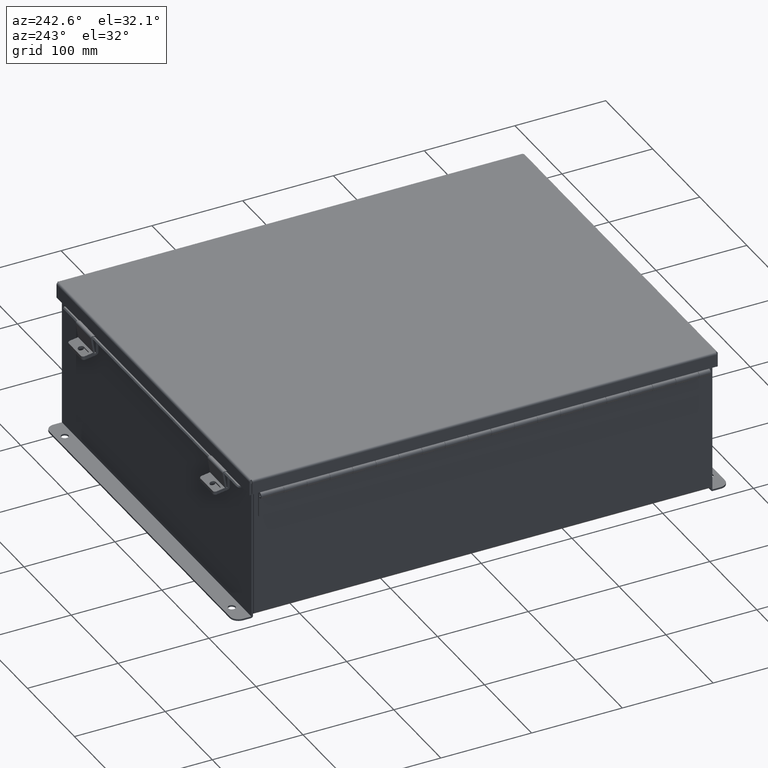
[diagram: clean part render]
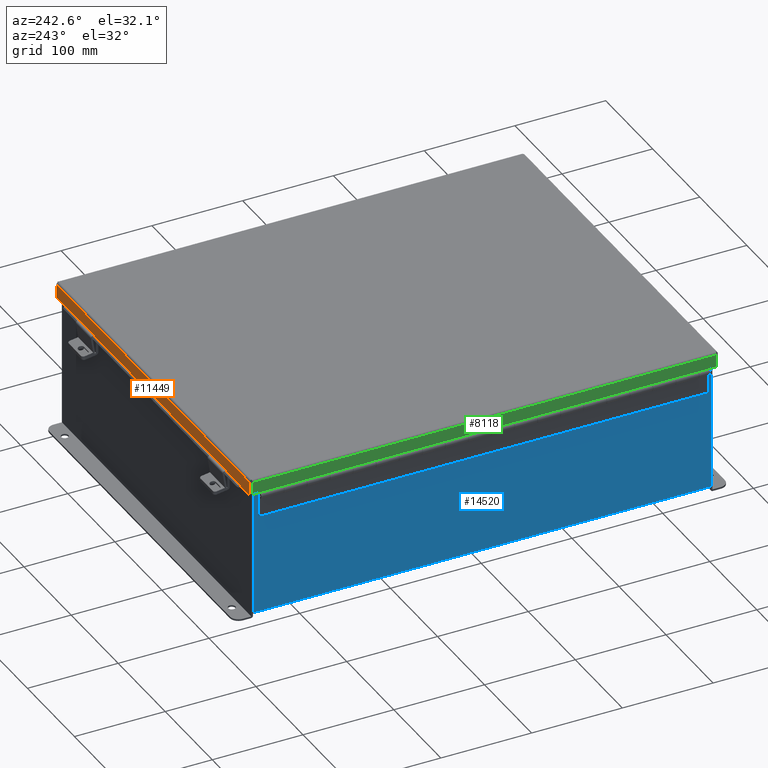
[diagram: same view with three faces highlighted in distinct colors, each labeled with its STEP entity id]
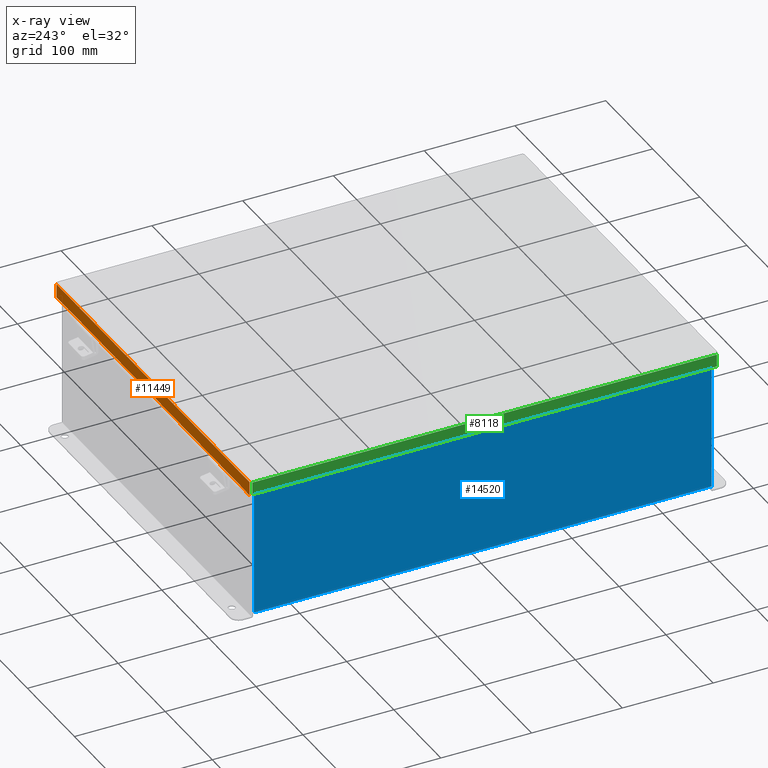
[diagram: x-ray of the same camera — body ghosted, the three highlighted faces saturated]
A machine part, auxiliary view with three faces highlighted in distinct colors.
The next image is the same camera in x-ray (body ghosted, the three faces saturated) — at least one of them is partly hidden behind the body in this view.
Their STEP definitions:

[orange] entity #11449 — the highlighted planar face has unit normal (-0, -1, -0).
#147 = DIRECTION ( 'NONE',  ( -0.0000000000000000000, 3.569293475308532400E-015, 1.000000000000000000 ) ) ;
#531 = EDGE_CURVE ( 'NONE', #21795, #21732, #14695, .T. ) ;
#1264 = EDGE_CURVE ( 'NONE', #14735, #17826, #18787, .T. ) ;
#1687 = VERTEX_POINT ( 'NONE', #17562 ) ;
#2322 = DIRECTION ( 'NONE',  ( 0.0000000000000000000, -3.569293475308532400E-015, -1.000000000000000000 ) ) ;
#2565 = VERTEX_POINT ( 'NONE', #11763 ) ;
#3286 = EDGE_CURVE ( 'NONE', #1687, #21795, #10081, .T. ) ;
#3295 = CARTESIAN_POINT ( 'NONE',  ( 5.335640612625514100E-018, 10.15624999999998400, 0.6122999999999994000 ) ) ;
#3350 = ORIENTED_EDGE ( 'NONE', *, *, #14502, .T. ) ;
#3395 = CARTESIAN_POINT ( 'NONE',  ( -8.074478932188169400, 10.15624999999998200, -3.715313271383398100E-014 ) ) ;
#4104 = VECTOR ( 'NONE', #4883, 39.37007874015748100 ) ;
#4327 = ORIENTED_EDGE ( 'NONE', *, *, #10358, .F. ) ;
#4646 = FACE_OUTER_BOUND ( 'NONE', #15736, .T. ) ;
#4883 = DIRECTION ( 'NONE',  ( 1.000000000000000000, 3.215430816478818200E-030, 4.186740220174584600E-018 ) ) ;
#5224 = DIRECTION ( 'NONE',  ( 1.000000000000000000, 3.191323508412550700E-030, -0.0000000000000000000 ) ) ;
#5456 = CARTESIAN_POINT ( 'NONE',  ( 7.324478932188148100, 10.15624999999998600, 0.5967115427318782100 ) ) ;
#5501 = VECTOR ( 'NONE', #16679, 39.37007874015748100 ) ;
#6855 = VERTEX_POINT ( 'NONE', #7710 ) ;
#7710 = CARTESIAN_POINT ( 'NONE',  ( 7.324478932188149800, 10.15624999999998400, 0.6122999999999994000 ) ) ;
#7719 = EDGE_CURVE ( 'NONE', #6855, #21732, #13321, .T. ) ;
#7753 = VECTOR ( 'NONE', #15588, 39.37007874015748100 ) ;
#7911 = LINE ( 'NONE', #8636, #16618 ) ;
#8636 = CARTESIAN_POINT ( 'NONE',  ( -7.324478932188140900, 10.15624999999998600, 0.5967115427318782100 ) ) ;
#9159 = CARTESIAN_POINT ( 'NONE',  ( 0.0000000000000000000, 10.15624999999998200, -3.715313271383398100E-014 ) ) ;
#9826 = ORIENTED_EDGE ( 'NONE', *, *, #18497, .F. ) ;
#10005 = ORIENTED_EDGE ( 'NONE', *, *, #7719, .T. ) ;
#10081 = LINE ( 'NONE', #10342, #14686 ) ;
#10342 = CARTESIAN_POINT ( 'NONE',  ( 8.156250000000033800, 10.15624999999998200, 0.01300000000000010700 ) ) ;
#10358 = EDGE_CURVE ( 'NONE', #14383, #17826, #7911, .T. ) ;
#10663 = DIRECTION ( 'NONE',  ( -1.000000000000000000, -3.191323508412551400E-030, -0.0000000000000000000 ) ) ;
#10813 = CARTESIAN_POINT ( 'NONE',  ( 5.335640612625514100E-018, 10.15624999999998400, 0.6122999999999994000 ) ) ;
#11449 = ADVANCED_FACE ( 'NONE', ( #4646 ), #19507, .F. ) ;
#11763 = CARTESIAN_POINT ( 'NONE',  ( 7.324478932188149800, 10.15624999999998400, 0.5967115427318782100 ) ) ;
#12212 = AXIS2_PLACEMENT_3D ( 'NONE', #9159, #12656, #2322 ) ;
#12520 = VECTOR ( 'NONE', #147, 39.37007874015748100 ) ;
#12547 = ORIENTED_EDGE ( 'NONE', *, *, #531, .F. ) ;
#12656 = DIRECTION ( 'NONE',  ( -3.372195227344556400E-030, -1.000000000000000000, 3.569293475308532400E-015 ) ) ;
#13274 = CARTESIAN_POINT ( 'NONE',  ( -7.324478932188140900, 10.15624999999998400, 0.5967115427318782100 ) ) ;
#13321 = LINE ( 'NONE', #3295, #4104 ) ;
#13746 = DIRECTION ( 'NONE',  ( 0.0000000000000000000, 3.569293475308532400E-015, 1.000000000000000000 ) ) ;
#14024 = LINE ( 'NONE', #18979, #7753 ) ;
#14383 = VERTEX_POINT ( 'NONE', #13274 ) ;
#14502 = EDGE_CURVE ( 'NONE', #1687, #14735, #18655, .T. ) ;
#14686 = VECTOR ( 'NONE', #5224, 39.37007874015748100 ) ;
#14695 = LINE ( 'NONE', #20880, #12520 ) ;
#14735 = VERTEX_POINT ( 'NONE', #16005 ) ;
#14879 = CARTESIAN_POINT ( 'NONE',  ( 8.074478932188169400, 10.15624999999998400, 0.6122999999999994000 ) ) ;
#15111 = CARTESIAN_POINT ( 'NONE',  ( 8.074478932188169400, 10.15624999999998200, 0.01300000000000010700 ) ) ;
#15113 = VECTOR ( 'NONE', #13746, 39.37007874015748100 ) ;
#15316 = ORIENTED_EDGE ( 'NONE', *, *, #1264, .T. ) ;
#15588 = DIRECTION ( 'NONE',  ( 0.0000000000000000000, -1.846427556282924300E-029, -1.000000000000000000 ) ) ;
#15736 = EDGE_LOOP ( 'NONE', ( #9826, #10005, #12547, #22349, #3350, #15316, #4327, #17287 ) ) ;
#16005 = CARTESIAN_POINT ( 'NONE',  ( -8.074478932188169400, 10.15624999999998400, 0.6122999999999994000 ) ) ;
#16618 = VECTOR ( 'NONE', #19063, 39.37007874015748100 ) ;
#16679 = DIRECTION ( 'NONE',  ( 1.000000000000000000, 3.215430816478818200E-030, 4.186740220174584600E-018 ) ) ;
#17287 = ORIENTED_EDGE ( 'NONE', *, *, #19142, .F. ) ;
#17562 = CARTESIAN_POINT ( 'NONE',  ( -8.074478932188169400, 10.15624999999998200, 0.01300000000000010700 ) ) ;
#17826 = VERTEX_POINT ( 'NONE', #21762 ) ;
#18348 = VECTOR ( 'NONE', #10663, 39.37007874015748100 ) ;
#18497 = EDGE_CURVE ( 'NONE', #6855, #2565, #14024, .T. ) ;
#18655 = LINE ( 'NONE', #3395, #15113 ) ;
#18787 = LINE ( 'NONE', #10813, #5501 ) ;
#18899 = LINE ( 'NONE', #5456, #18348 ) ;
#18979 = CARTESIAN_POINT ( 'NONE',  ( 7.324478932188149800, 10.15624999999998600, 0.6122999999999982900 ) ) ;
#19063 = DIRECTION ( 'NONE',  ( -3.504962610060362700E-013, 1.873544649899896900E-029, 1.000000000000000000 ) ) ;
#19142 = EDGE_CURVE ( 'NONE', #2565, #14383, #18899, .T. ) ;
#19507 = PLANE ( 'NONE',  #12212 ) ;
#20880 = CARTESIAN_POINT ( 'NONE',  ( 8.074478932188169400, 10.15624999999998200, 0.0000000000000000000 ) ) ;
#21732 = VERTEX_POINT ( 'NONE', #14879 ) ;
#21762 = CARTESIAN_POINT ( 'NONE',  ( -7.324478932188148100, 10.15624999999998400, 0.6122999999999994000 ) ) ;
#21795 = VERTEX_POINT ( 'NONE', #15111 ) ;
#22349 = ORIENTED_EDGE ( 'NONE', *, *, #3286, .F. ) ;

[blue] entity #14520 — the highlighted planar face has unit normal (1, 0, 0).
#756 = EDGE_CURVE ( 'NONE', #21602, #12425, #3585, .T. ) ;
#1982 = CARTESIAN_POINT ( 'NONE',  ( -7.999999999999996400, 9.925299999999998200, 0.01300000000000009800 ) ) ;
#2187 = VECTOR ( 'NONE', #6205, 39.37007874015748100 ) ;
#2727 = DIRECTION ( 'NONE',  ( 0.0000000000000000000, 1.000000000000000000, 0.0000000000000000000 ) ) ;
#2871 = CARTESIAN_POINT ( 'NONE',  ( -8.000000000000017800, 9.925299999999998200, 5.837599999999999200 ) ) ;
#3127 = EDGE_LOOP ( 'NONE', ( #7130, #19926, #7532, #8402 ) ) ;
#3258 = LINE ( 'NONE', #16578, #15972 ) ;
#3585 = LINE ( 'NONE', #4070, #21490 ) ;
#4070 = CARTESIAN_POINT ( 'NONE',  ( -7.999999999999996400, -9.925299999999998200, -2.494518699214680400E-014 ) ) ;
#4697 = CARTESIAN_POINT ( 'NONE',  ( -8.000000000000017800, -9.925299999999996500, 5.837599999999999200 ) ) ;
#4831 = FACE_OUTER_BOUND ( 'NONE', #3127, .T. ) ;
#6205 = DIRECTION ( 'NONE',  ( -1.953496330014866600E-031, 1.000000000000000000, 5.504816970095139000E-017 ) ) ;
#6257 = VERTEX_POINT ( 'NONE', #1982 ) ;
#7130 = ORIENTED_EDGE ( 'NONE', *, *, #12370, .T. ) ;
#7451 = EDGE_CURVE ( 'NONE', #14326, #6257, #13616, .T. ) ;
#7532 = ORIENTED_EDGE ( 'NONE', *, *, #13164, .F. ) ;
#8201 = DIRECTION ( 'NONE',  ( -3.548703509357741800E-015, 3.735477378271307500E-016, 1.000000000000000000 ) ) ;
#8402 = ORIENTED_EDGE ( 'NONE', *, *, #756, .T. ) ;
#8577 = CARTESIAN_POINT ( 'NONE',  ( -7.999999999999996400, 0.0000000000000000000, -2.865025583355396000E-014 ) ) ;
#9488 = DIRECTION ( 'NONE',  ( 3.548703509357741800E-015, 0.0000000000000000000, -1.000000000000000000 ) ) ;
#10326 = DIRECTION ( 'NONE',  ( 3.548703509357741000E-015, 0.0000000000000000000, -1.000000000000000000 ) ) ;
#12370 = EDGE_CURVE ( 'NONE', #12425, #14326, #3258, .T. ) ;
#12425 = VERTEX_POINT ( 'NONE', #4697 ) ;
#12621 = CARTESIAN_POINT ( 'NONE',  ( -7.999999999999996400, -9.925299999999996500, 0.01299999999999875000 ) ) ;
#13069 = VECTOR ( 'NONE', #9488, 39.37007874015748100 ) ;
#13154 = CARTESIAN_POINT ( 'NONE',  ( -7.999999999999996400, 9.925299999999998200, 0.01299999999999984300 ) ) ;
#13164 = EDGE_CURVE ( 'NONE', #21602, #6257, #15979, .T. ) ;
#13616 = LINE ( 'NONE', #21946, #13069 ) ;
#14326 = VERTEX_POINT ( 'NONE', #2871 ) ;
#14520 = ADVANCED_FACE ( 'NONE', ( #4831 ), #17226, .F. ) ;
#15972 = VECTOR ( 'NONE', #2727, 39.37007874015748100 ) ;
#15979 = LINE ( 'NONE', #13154, #2187 ) ;
#16578 = CARTESIAN_POINT ( 'NONE',  ( -8.000000000000017800, -9.925299999999998200, 5.837599999999999200 ) ) ;
#17226 = PLANE ( 'NONE',  #18349 ) ;
#18349 = AXIS2_PLACEMENT_3D ( 'NONE', #8577, #20770, #10326 ) ;
#19926 = ORIENTED_EDGE ( 'NONE', *, *, #7451, .T. ) ;
#20770 = DIRECTION ( 'NONE',  ( 1.000000000000000000, 0.0000000000000000000, 3.548703509357741000E-015 ) ) ;
#21490 = VECTOR ( 'NONE', #8201, 39.37007874015748100 ) ;
#21602 = VERTEX_POINT ( 'NONE', #12621 ) ;
#21946 = CARTESIAN_POINT ( 'NONE',  ( -7.999999999999996400, 9.925299999999998200, -2.865025583355396000E-014 ) ) ;

[green] entity #8118 — the highlighted planar face has unit normal (1, -0, 0).
#617 = FACE_OUTER_BOUND ( 'NONE', #19067, .T. ) ;
#769 = CARTESIAN_POINT ( 'NONE',  ( 8.156250000000033800, -10.15625000000001600, 0.01299999999999901400 ) ) ;
#966 = ORIENTED_EDGE ( 'NONE', *, *, #15651, .F. ) ;
#1178 = VECTOR ( 'NONE', #9087, 39.37007874015748100 ) ;
#1412 = LINE ( 'NONE', #5697, #14628 ) ;
#3872 = CARTESIAN_POINT ( 'NONE',  ( 8.156250000000033800, 10.07447893218811600, 0.01300000000000010700 ) ) ;
#4737 = DIRECTION ( 'NONE',  ( -1.000000000000000000, -3.214874041279299500E-030, 3.971430846686186800E-015 ) ) ;
#5383 = VERTEX_POINT ( 'NONE', #13727 ) ;
#5697 = CARTESIAN_POINT ( 'NONE',  ( 8.156250000000033800, -10.07447893218815200, -1.092739197465705300E-015 ) ) ;
#5711 = VERTEX_POINT ( 'NONE', #15739 ) ;
#6561 = VERTEX_POINT ( 'NONE', #3872 ) ;
#7180 = VECTOR ( 'NONE', #19763, 39.37007874015748100 ) ;
#7333 = CARTESIAN_POINT ( 'NONE',  ( 8.156250000000033800, 10.07447893218811600, -3.278217592397115700E-014 ) ) ;
#7415 = DIRECTION ( 'NONE',  ( 3.971430846686186800E-015, 1.846427556282924300E-029, 1.000000000000000000 ) ) ;
#7754 = AXIS2_PLACEMENT_3D ( 'NONE', #11572, #4737, #16842 ) ;
#8118 = ADVANCED_FACE ( 'NONE', ( #617 ), #13341, .F. ) ;
#8697 = VERTEX_POINT ( 'NONE', #16805 ) ;
#9063 = DIRECTION ( 'NONE',  ( -3.166671605124525800E-030, -1.000000000000000000, -1.853823127269377700E-029 ) ) ;
#9087 = DIRECTION ( 'NONE',  ( 3.971430846686186800E-015, 1.846427556282924300E-029, 1.000000000000000000 ) ) ;
#10851 = LINE ( 'NONE', #7333, #1178 ) ;
#11400 = EDGE_CURVE ( 'NONE', #6561, #5383, #10851, .T. ) ;
#11572 = CARTESIAN_POINT ( 'NONE',  ( 8.156250000000033800, 0.0000000000000000000, -2.404026234424551500E-014 ) ) ;
#11682 = ORIENTED_EDGE ( 'NONE', *, *, #17132, .F. ) ;
#12145 = EDGE_CURVE ( 'NONE', #5383, #5711, #15712, .T. ) ;
#12570 = CARTESIAN_POINT ( 'NONE',  ( 8.156250000000037300, 0.0000000000000000000, 0.5503000000000085600 ) ) ;
#13341 = PLANE ( 'NONE',  #7754 ) ;
#13727 = CARTESIAN_POINT ( 'NONE',  ( 8.156250000000037300, 10.07447893218811600, 0.5503000000000010100 ) ) ;
#14619 = VECTOR ( 'NONE', #9063, 39.37007874015748100 ) ;
#14628 = VECTOR ( 'NONE', #7415, 39.37007874015748100 ) ;
#15651 = EDGE_CURVE ( 'NONE', #6561, #8697, #21064, .T. ) ;
#15712 = LINE ( 'NONE', #12570, #14619 ) ;
#15739 = CARTESIAN_POINT ( 'NONE',  ( 8.156250000000037300, -10.07447893218815200, 0.5502999999999999000 ) ) ;
#16805 = CARTESIAN_POINT ( 'NONE',  ( 8.156250000000033800, -10.07447893218815200, 0.01299999999999901400 ) ) ;
#16842 = DIRECTION ( 'NONE',  ( 3.971430846686186800E-015, 1.846427556282924000E-029, 1.000000000000000000 ) ) ;
#17132 = EDGE_CURVE ( 'NONE', #8697, #5711, #1412, .T. ) ;
#18197 = ORIENTED_EDGE ( 'NONE', *, *, #12145, .T. ) ;
#19028 = ORIENTED_EDGE ( 'NONE', *, *, #11400, .T. ) ;
#19067 = EDGE_LOOP ( 'NONE', ( #966, #19028, #18197, #11682 ) ) ;
#19763 = DIRECTION ( 'NONE',  ( -3.166671605124525800E-030, -1.000000000000000000, -1.853823127269377700E-029 ) ) ;
#21064 = LINE ( 'NONE', #769, #7180 ) ;